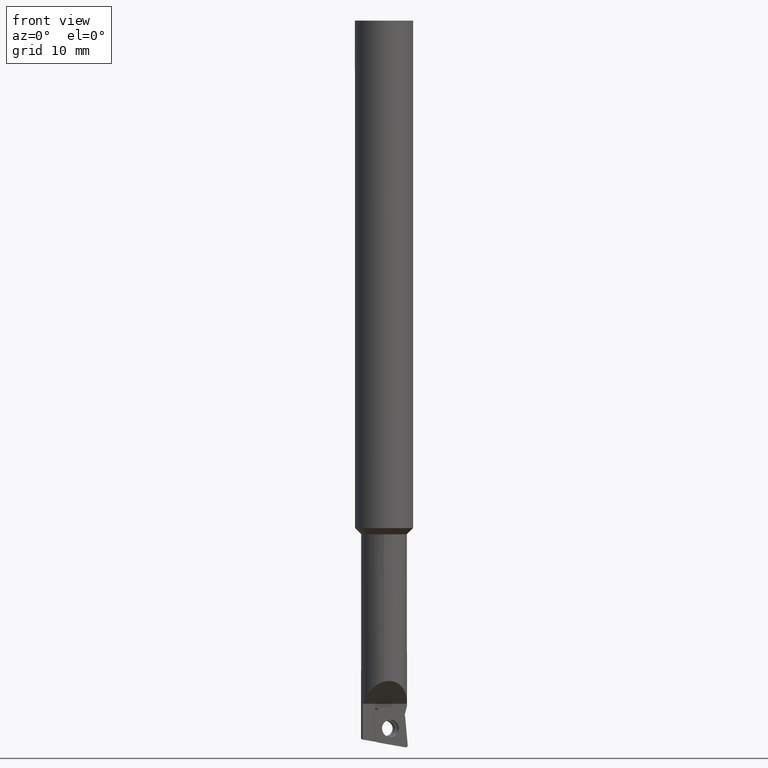
[diagram: clean part render]
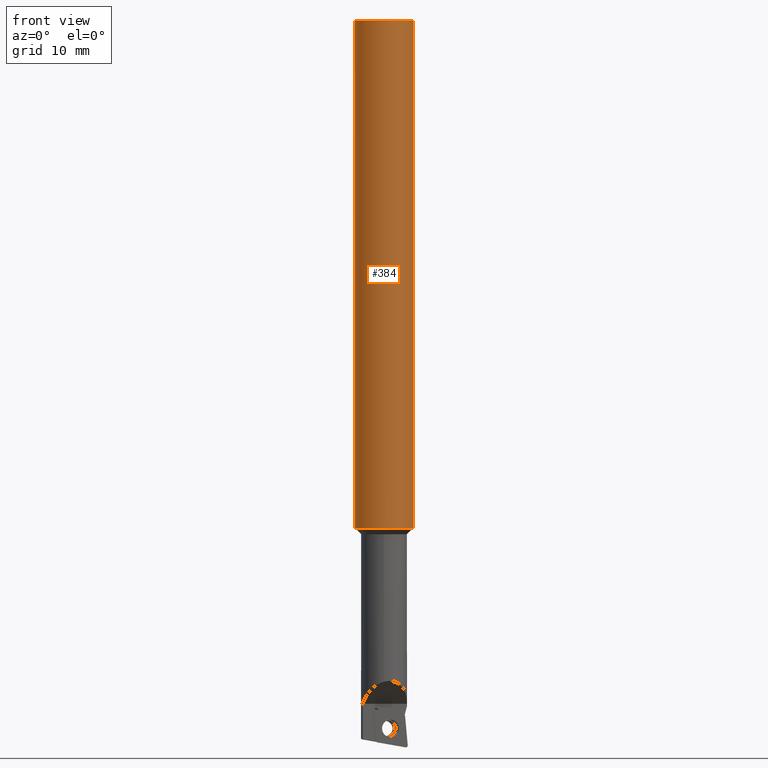
[diagram: same view with one face highlighted and labeled with its STEP entity id]
A machine part, front view. The second image highlights one B-rep face of the part: STEP entity #384.
In plain terms, the highlighted cylindrical surface (bore or boss wall) has radius 3 mm, axis along (-0, -0, 1).
Its self-contained STEP definition (entity closure, byte-faithful):
#166=EDGE_CURVE('240[2]',#456,#456,#457,.F.);
#170=EDGE_CURVE('240[2]',#463,#463,#464,.T.);
#384=ADVANCED_FACE('240[2]',(#750,#751),#752,.T.);
#456=VERTEX_POINT('',#835);
#457=CIRCLE('',#836,3.0);
#463=VERTEX_POINT('NONE',#845);
#464=CIRCLE('',#846,2.99999999999999);
#750=FACE_BOUND('',#1375,.T.);
#751=FACE_BOUND('',#1376,.T.);
#752=CYLINDRICAL_SURFACE('',#1377,3.0);
#835=CARTESIAN_POINT('',(3.0,0.0,75.0));
#836=AXIS2_PLACEMENT_3D('',#1452,#1453,#1454);
#845=CARTESIAN_POINT('',(0.0,3.0,22.625));
#846=AXIS2_PLACEMENT_3D('',#1456,#1457,#1458);
#1375=EDGE_LOOP('',(#1765));
#1376=EDGE_LOOP('',(#1766));
#1377=AXIS2_PLACEMENT_3D('',#1767,#1768,#1769);
#1452=CARTESIAN_POINT('',(0.0,0.0,75.0));
#1453=DIRECTION('',(1.12481983699639E-032,1.83697019872103E-016,-1.0));
#1454=DIRECTION('',(-1.83697019872103E-016,-1.0,-1.83697019872103E-016));
#1456=CARTESIAN_POINT('',(0.0,9.6211314158014E-015,22.625));
#1457=DIRECTION('',(1.12481983699639E-032,1.83697019872103E-016,-1.0));
#1458=DIRECTION('',(-1.83697019872103E-016,-1.0,-1.83697019872103E-016));
#1765=ORIENTED_EDGE('',*,*,#166,.F.);
#1766=ORIENTED_EDGE('',*,*,#170,.F.);
#1767=CARTESIAN_POINT('',(0.0,0.0,75.0));
#1768=DIRECTION('',(-1.12481983699639E-032,-1.83697019872103E-016,1.0));
#1769=DIRECTION('',(-1.83697019872103E-016,-1.0,-1.83697019872103E-016));